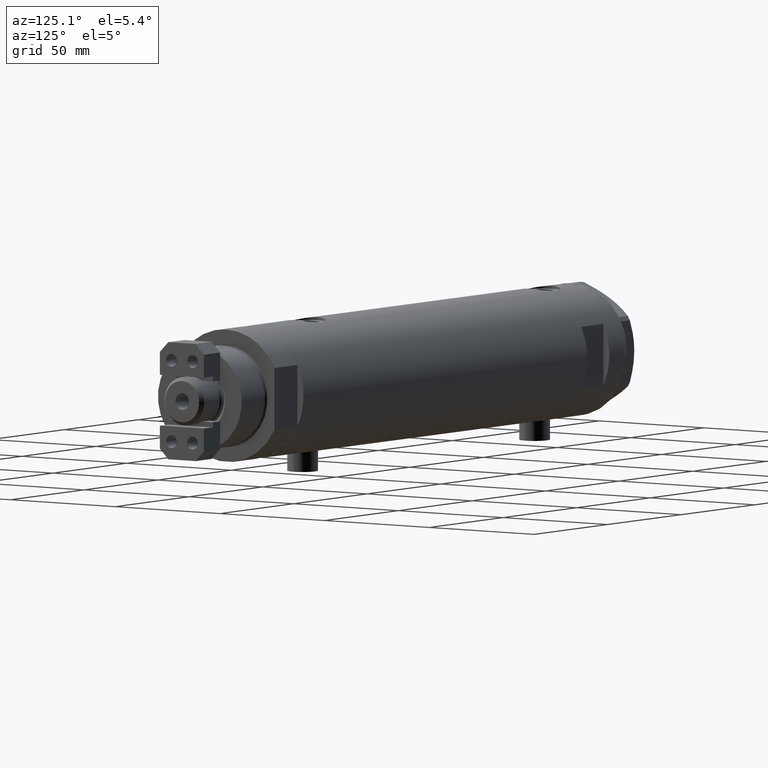
[diagram: clean part render]
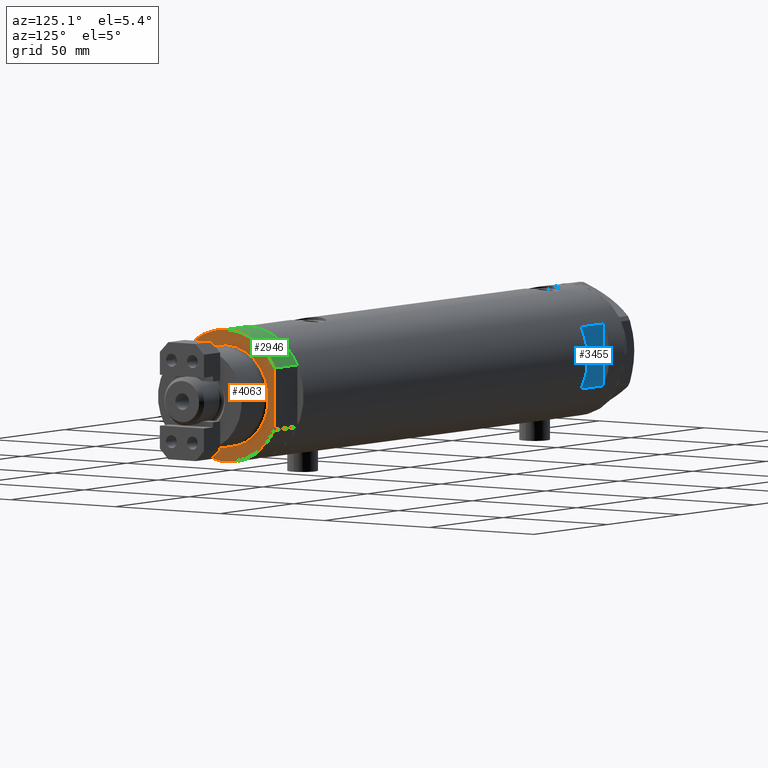
[diagram: same view with three faces highlighted in distinct colors, each labeled with its STEP entity id]
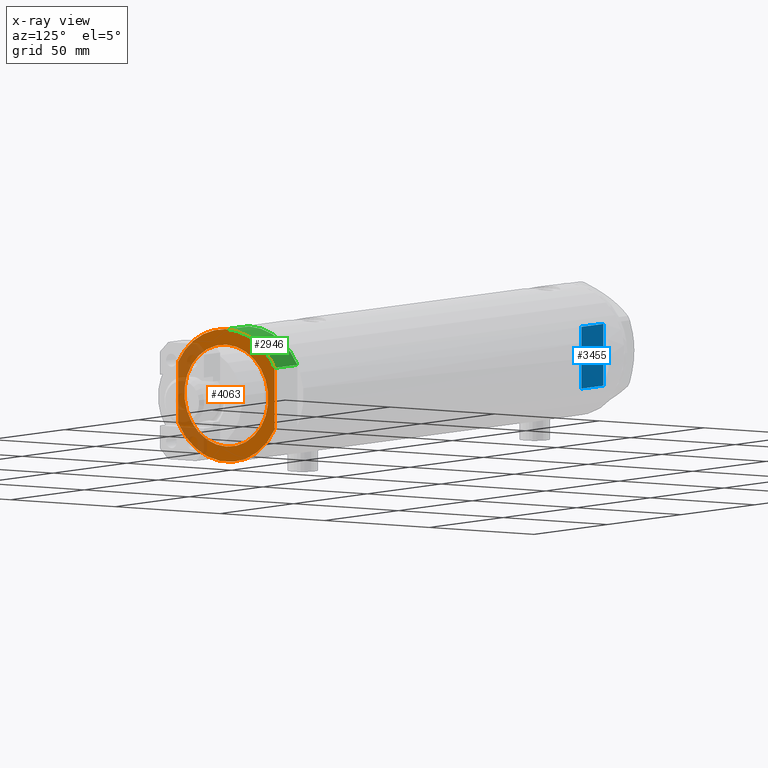
[diagram: x-ray of the same camera — body ghosted, the three highlighted faces saturated]
A machine part, auxiliary view with three faces highlighted in distinct colors.
The next image is the same camera in x-ray (body ghosted, the three faces saturated) — at least one of them is partly hidden behind the body in this view.
Their STEP definitions:

[orange] entity #4063 — the highlighted planar face has unit normal (1, 0, -0).
#76 = VECTOR ( 'NONE', #4609, 1000.000000000000000 ) ;
#264 = CIRCLE ( 'NONE', #3605, 20.00000000000000000 ) ;
#287 = CARTESIAN_POINT ( 'NONE',  ( -26.00000000000000355, 0.000000000000000000, 15.50000000000000000 ) ) ;
#317 = VERTEX_POINT ( 'NONE', #4305 ) ;
#338 = ORIENTED_EDGE ( 'NONE', *, *, #4015, .F. ) ;
#371 = DIRECTION ( 'NONE',  ( 1.000000000000000000, 0.000000000000000000, -0.000000000000000000 ) ) ;
#451 = AXIS2_PLACEMENT_3D ( 'NONE', #657, #1491, #1114 ) ;
#534 = DIRECTION ( 'NONE',  ( -0.000000000000000000, -0.000000000000000000, -1.000000000000000000 ) ) ;
#552 = VERTEX_POINT ( 'NONE', #287 ) ;
#657 = CARTESIAN_POINT ( 'NONE',  ( 0.000000000000000000, 0.000000000000000000, 15.50000000000000000 ) ) ;
#742 = EDGE_CURVE ( 'NONE', #2523, #552, #4888, .T. ) ;
#778 = FACE_BOUND ( 'NONE', #2173, .T. ) ;
#918 = EDGE_LOOP ( 'NONE', ( #338, #3229, #3923, #1966, #2800 ) ) ;
#1095 = VERTEX_POINT ( 'NONE', #4374 ) ;
#1114 = DIRECTION ( 'NONE',  ( 1.000000000000000000, 0.000000000000000000, 0.000000000000000000 ) ) ;
#1132 = DIRECTION ( 'NONE',  ( 1.000000000000000000, 0.000000000000000000, 0.000000000000000000 ) ) ;
#1203 = VERTEX_POINT ( 'NONE', #2831 ) ;
#1329 = CARTESIAN_POINT ( 'NONE',  ( 0.000000000000000000, 0.000000000000000000, 15.50000000000000000 ) ) ;
#1416 = EDGE_CURVE ( 'NONE', #5489, #1930, #1745, .T. ) ;
#1434 = AXIS2_PLACEMENT_3D ( 'NONE', #4242, #2500, #371 ) ;
#1491 = DIRECTION ( 'NONE',  ( 0.000000000000000000, 0.000000000000000000, 1.000000000000000000 ) ) ;
#1620 = LINE ( 'NONE', #3336, #76 ) ;
#1643 = CARTESIAN_POINT ( 'NONE',  ( -12.12435565298214613, 23.00000000000000355, 15.50000000000000000 ) ) ;
#1674 = EDGE_CURVE ( 'NONE', #2523, #1095, #4592, .T. ) ;
#1701 = FACE_OUTER_BOUND ( 'NONE', #918, .T. ) ;
#1745 = CIRCLE ( 'NONE', #3906, 20.00000000000000000 ) ;
#1891 = ORIENTED_EDGE ( 'NONE', *, *, #1416, .T. ) ;
#1930 = VERTEX_POINT ( 'NONE', #3051 ) ;
#1954 = DIRECTION ( 'NONE',  ( 0.000000000000000000, 0.000000000000000000, 1.000000000000000000 ) ) ;
#1966 = ORIENTED_EDGE ( 'NONE', *, *, #742, .T. ) ;
#2033 = VECTOR ( 'NONE', #4618, 1000.000000000000000 ) ;
#2141 = AXIS2_PLACEMENT_3D ( 'NONE', #2889, #1954, #1132 ) ;
#2173 = EDGE_LOOP ( 'NONE', ( #2974, #1891 ) ) ;
#2424 = CARTESIAN_POINT ( 'NONE',  ( -12.12435565298215145, 23.00000000000000355, 15.50000000000000000 ) ) ;
#2500 = DIRECTION ( 'NONE',  ( 0.000000000000000000, 0.000000000000000000, 1.000000000000000000 ) ) ;
#2523 = VERTEX_POINT ( 'NONE', #1643 ) ;
#2568 = CIRCLE ( 'NONE', #2141, 26.00000000000000355 ) ;
#2669 = DIRECTION ( 'NONE',  ( 1.000000000000000000, 0.000000000000000000, 0.000000000000000000 ) ) ;
#2738 = CARTESIAN_POINT ( 'NONE',  ( 0.000000000000000000, 0.000000000000000000, 15.50000000000000000 ) ) ;
#2800 = ORIENTED_EDGE ( 'NONE', *, *, #5323, .T. ) ;
#2831 = CARTESIAN_POINT ( 'NONE',  ( -12.12435565298215323, -22.99999999999999645, 15.50000000000000000 ) ) ;
#2889 = CARTESIAN_POINT ( 'NONE',  ( 0.000000000000000000, 0.000000000000000000, 15.50000000000000000 ) ) ;
#2974 = ORIENTED_EDGE ( 'NONE', *, *, #5274, .T. ) ;
#3051 = CARTESIAN_POINT ( 'NONE',  ( 20.00000000000000000, 0.000000000000000000, 15.50000000000000000 ) ) ;
#3133 = DIRECTION ( 'NONE',  ( 1.000000000000000000, 0.000000000000000000, 0.000000000000000000 ) ) ;
#3229 = ORIENTED_EDGE ( 'NONE', *, *, #3371, .T. ) ;
#3336 = CARTESIAN_POINT ( 'NONE',  ( -12.12435565298215145, -22.99999999999999645, 15.50000000000000000 ) ) ;
#3371 = EDGE_CURVE ( 'NONE', #317, #1095, #2568, .T. ) ;
#3605 = AXIS2_PLACEMENT_3D ( 'NONE', #2738, #534, #3133 ) ;
#3809 = AXIS2_PLACEMENT_3D ( 'NONE', #1329, #5270, #2669 ) ;
#3834 = DIRECTION ( 'NONE',  ( -0.000000000000000000, -0.000000000000000000, -1.000000000000000000 ) ) ;
#3906 = AXIS2_PLACEMENT_3D ( 'NONE', #5155, #3834, #5566 ) ;
#3923 = ORIENTED_EDGE ( 'NONE', *, *, #1674, .F. ) ;
#4015 = EDGE_CURVE ( 'NONE', #317, #1203, #1620, .T. ) ;
#4063 = ADVANCED_FACE ( 'NONE', ( #778, #1701 ), #5049, .T. ) ;
#4242 = CARTESIAN_POINT ( 'NONE',  ( 0.000000000000000000, 0.000000000000000000, 15.50000000000000000 ) ) ;
#4305 = CARTESIAN_POINT ( 'NONE',  ( 12.12435565298215323, -22.99999999999999645, 15.50000000000000000 ) ) ;
#4374 = CARTESIAN_POINT ( 'NONE',  ( 12.12435565298214790, 23.00000000000000355, 15.50000000000000000 ) ) ;
#4512 = CARTESIAN_POINT ( 'NONE',  ( -20.00000000000000000, 2.449293598294706513E-15, 15.50000000000000000 ) ) ;
#4592 = LINE ( 'NONE', #2424, #2033 ) ;
#4603 = CIRCLE ( 'NONE', #451, 26.00000000000000355 ) ;
#4609 = DIRECTION ( 'NONE',  ( -1.000000000000000000, -0.000000000000000000, -0.000000000000000000 ) ) ;
#4618 = DIRECTION ( 'NONE',  ( 1.000000000000000000, 0.000000000000000000, 0.000000000000000000 ) ) ;
#4888 = CIRCLE ( 'NONE', #3809, 26.00000000000000355 ) ;
#5049 = PLANE ( 'NONE',  #1434 ) ;
#5155 = CARTESIAN_POINT ( 'NONE',  ( 0.000000000000000000, 0.000000000000000000, 15.50000000000000000 ) ) ;
#5270 = DIRECTION ( 'NONE',  ( 0.000000000000000000, 0.000000000000000000, 1.000000000000000000 ) ) ;
#5274 = EDGE_CURVE ( 'NONE', #1930, #5489, #264, .T. ) ;
#5323 = EDGE_CURVE ( 'NONE', #552, #1203, #4603, .T. ) ;
#5489 = VERTEX_POINT ( 'NONE', #4512 ) ;
#5566 = DIRECTION ( 'NONE',  ( 1.000000000000000000, 0.000000000000000000, 0.000000000000000000 ) ) ;

[blue] entity #3455 — the highlighted planar face has unit normal (0, -1, -0).
#124 = ORIENTED_EDGE ( 'NONE', *, *, #1750, .T. ) ;
#164 = VERTEX_POINT ( 'NONE', #3780 ) ;
#204 = DIRECTION ( 'NONE',  ( 0.000000000000000000, 0.000000000000000000, 1.000000000000000000 ) ) ;
#456 = DIRECTION ( 'NONE',  ( 1.000000000000000000, -0.000000000000000000, -0.000000000000000000 ) ) ;
#480 = VECTOR ( 'NONE', #1655, 1000.000000000000000 ) ;
#492 = CARTESIAN_POINT ( 'NONE',  ( -12.12435565298214080, 23.00000000000000355, 98.95000000000001705 ) ) ;
#502 = PLANE ( 'NONE',  #1394 ) ;
#506 = EDGE_CURVE ( 'NONE', #3796, #5315, #2364, .T. ) ;
#809 = EDGE_CURVE ( 'NONE', #3681, #3796, #4046, .T. ) ;
#810 = CARTESIAN_POINT ( 'NONE',  ( 12.12435565298214080, 23.00000000000000355, -108.9500000000000028 ) ) ;
#1394 = AXIS2_PLACEMENT_3D ( 'NONE', #1827, #1800, #3484 ) ;
#1655 = DIRECTION ( 'NONE',  ( -0.000000000000000000, -0.000000000000000000, -1.000000000000000000 ) ) ;
#1750 = EDGE_CURVE ( 'NONE', #5315, #164, #2589, .T. ) ;
#1800 = DIRECTION ( 'NONE',  ( 0.000000000000000000, -1.000000000000000000, -0.000000000000000000 ) ) ;
#1827 = CARTESIAN_POINT ( 'NONE',  ( -26.00000000000000355, 23.00000000000000355, 98.95000000000001705 ) ) ;
#1877 = FACE_OUTER_BOUND ( 'NONE', #3200, .T. ) ;
#2364 = LINE ( 'NONE', #4824, #3903 ) ;
#2589 = LINE ( 'NONE', #810, #480 ) ;
#2726 = VECTOR ( 'NONE', #204, 1000.000000000000000 ) ;
#2909 = ORIENTED_EDGE ( 'NONE', *, *, #809, .T. ) ;
#2964 = VECTOR ( 'NONE', #456, 1000.000000000000000 ) ;
#3103 = LINE ( 'NONE', #3988, #2964 ) ;
#3200 = EDGE_LOOP ( 'NONE', ( #124, #4809, #2909, #3913 ) ) ;
#3455 = ADVANCED_FACE ( 'NONE', ( #1877 ), #502, .F. ) ;
#3484 = DIRECTION ( 'NONE',  ( 0.000000000000000000, 0.000000000000000000, -1.000000000000000000 ) ) ;
#3625 = CARTESIAN_POINT ( 'NONE',  ( -12.12435565298214080, 23.00000000000000355, -108.9500000000000028 ) ) ;
#3681 = VERTEX_POINT ( 'NONE', #5561 ) ;
#3755 = CARTESIAN_POINT ( 'NONE',  ( 12.12435565298214080, 23.00000000000000355, 98.95000000000001705 ) ) ;
#3780 = CARTESIAN_POINT ( 'NONE',  ( 12.12435565298213724, 23.00000000000000355, 83.95000000000003126 ) ) ;
#3796 = VERTEX_POINT ( 'NONE', #492 ) ;
#3903 = VECTOR ( 'NONE', #4082, 1000.000000000000000 ) ;
#3913 = ORIENTED_EDGE ( 'NONE', *, *, #506, .T. ) ;
#3988 = CARTESIAN_POINT ( 'NONE',  ( -26.00000000000000355, 23.00000000000000355, 83.95000000000003126 ) ) ;
#4046 = LINE ( 'NONE', #3625, #2726 ) ;
#4082 = DIRECTION ( 'NONE',  ( 1.000000000000000000, -0.000000000000000000, -0.000000000000000000 ) ) ;
#4225 = EDGE_CURVE ( 'NONE', #3681, #164, #3103, .T. ) ;
#4809 = ORIENTED_EDGE ( 'NONE', *, *, #4225, .F. ) ;
#4824 = CARTESIAN_POINT ( 'NONE',  ( -26.00000000000000355, 23.00000000000000355, 98.95000000000001705 ) ) ;
#5315 = VERTEX_POINT ( 'NONE', #3755 ) ;
#5561 = CARTESIAN_POINT ( 'NONE',  ( -12.12435565298214080, 23.00000000000000355, 83.95000000000003126 ) ) ;

[green] entity #2946 — the highlighted cylindrical surface (partial cylindrical patch) has radius 26 mm, axis along (-1, -0, 0).
#9 = AXIS2_PLACEMENT_3D ( 'NONE', #235, #1977, #211 ) ;
#211 = DIRECTION ( 'NONE',  ( 1.000000000000000000, 0.000000000000000000, 0.000000000000000000 ) ) ;
#235 = CARTESIAN_POINT ( 'NONE',  ( 0.000000000000000000, 0.000000000000000000, 0.000000000000000000 ) ) ;
#271 = EDGE_CURVE ( 'NONE', #868, #4193, #2454, .T. ) ;
#287 = CARTESIAN_POINT ( 'NONE',  ( -26.00000000000000355, 0.000000000000000000, 15.50000000000000000 ) ) ;
#316 = EDGE_CURVE ( 'NONE', #552, #4193, #3420, .T. ) ;
#347 = EDGE_LOOP ( 'NONE', ( #2824, #4277, #3704, #1342 ) ) ;
#537 = DIRECTION ( 'NONE',  ( -0.000000000000000000, -0.000000000000000000, -1.000000000000000000 ) ) ;
#552 = VERTEX_POINT ( 'NONE', #287 ) ;
#742 = EDGE_CURVE ( 'NONE', #2523, #552, #4888, .T. ) ;
#868 = VERTEX_POINT ( 'NONE', #4974 ) ;
#944 = DIRECTION ( 'NONE',  ( -1.000000000000000000, 0.000000000000000000, 0.000000000000000000 ) ) ;
#1210 = EDGE_CURVE ( 'NONE', #868, #2523, #4758, .T. ) ;
#1329 = CARTESIAN_POINT ( 'NONE',  ( 0.000000000000000000, 0.000000000000000000, 15.50000000000000000 ) ) ;
#1342 = ORIENTED_EDGE ( 'NONE', *, *, #271, .T. ) ;
#1366 = FACE_OUTER_BOUND ( 'NONE', #347, .T. ) ;
#1643 = CARTESIAN_POINT ( 'NONE',  ( -12.12435565298214613, 23.00000000000000355, 15.50000000000000000 ) ) ;
#1977 = DIRECTION ( 'NONE',  ( 0.000000000000000000, 0.000000000000000000, 1.000000000000000000 ) ) ;
#2454 = CIRCLE ( 'NONE', #9, 26.00000000000000355 ) ;
#2523 = VERTEX_POINT ( 'NONE', #1643 ) ;
#2609 = CARTESIAN_POINT ( 'NONE',  ( -12.12435565298215145, 23.00000000000000355, 0.000000000000000000 ) ) ;
#2619 = DIRECTION ( 'NONE',  ( -0.000000000000000000, -0.000000000000000000, -1.000000000000000000 ) ) ;
#2628 = CARTESIAN_POINT ( 'NONE',  ( -26.00000000000000355, 0.000000000000000000, 0.000000000000000000 ) ) ;
#2669 = DIRECTION ( 'NONE',  ( 1.000000000000000000, 0.000000000000000000, 0.000000000000000000 ) ) ;
#2684 = CARTESIAN_POINT ( 'NONE',  ( -26.00000000000000355, 0.000000000000000000, 15.50000000000000000 ) ) ;
#2824 = ORIENTED_EDGE ( 'NONE', *, *, #316, .F. ) ;
#2946 = ADVANCED_FACE ( 'NONE', ( #1366 ), #5596, .T. ) ;
#3028 = CARTESIAN_POINT ( 'NONE',  ( 0.000000000000000000, 0.000000000000000000, 15.50000000000000000 ) ) ;
#3376 = AXIS2_PLACEMENT_3D ( 'NONE', #3028, #2619, #944 ) ;
#3420 = LINE ( 'NONE', #2684, #4795 ) ;
#3704 = ORIENTED_EDGE ( 'NONE', *, *, #1210, .F. ) ;
#3809 = AXIS2_PLACEMENT_3D ( 'NONE', #1329, #5270, #2669 ) ;
#4193 = VERTEX_POINT ( 'NONE', #2628 ) ;
#4277 = ORIENTED_EDGE ( 'NONE', *, *, #742, .F. ) ;
#4625 = VECTOR ( 'NONE', #5176, 1000.000000000000000 ) ;
#4758 = LINE ( 'NONE', #2609, #4625 ) ;
#4795 = VECTOR ( 'NONE', #537, 1000.000000000000000 ) ;
#4888 = CIRCLE ( 'NONE', #3809, 26.00000000000000355 ) ;
#4974 = CARTESIAN_POINT ( 'NONE',  ( -12.12435565298215145, 23.00000000000000355, 0.000000000000000000 ) ) ;
#5176 = DIRECTION ( 'NONE',  ( -0.000000000000000000, -0.000000000000000000, 1.000000000000000000 ) ) ;
#5270 = DIRECTION ( 'NONE',  ( 0.000000000000000000, 0.000000000000000000, 1.000000000000000000 ) ) ;
#5596 = CYLINDRICAL_SURFACE ( 'NONE', #3376, 26.00000000000000355 ) ;